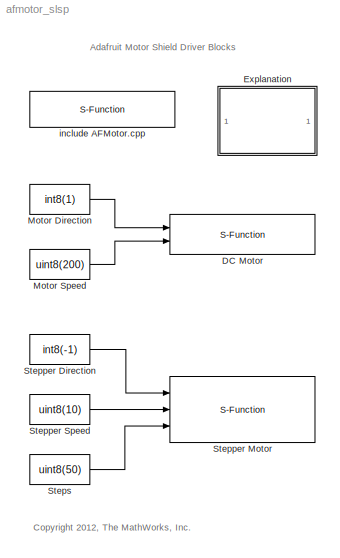
MODEL afmotor_slsp
KIND model
BLOCK [S-Function] DC Motor
  CopyFcn = set_param(gcbh,'LinkStatus','none')
  EnableBusSupport = off
  FunctionName = dcm_slsp
  InitFcn = try, set_param(gcb,'FunctionName','dcm_slsp'), end
  OpenFcn = sfunctionwizard(gcbh)
  Parameters = uint8(4)
  Ports = [2]
  PreSaveFcn = try, set_param(gcb,'FunctionName','dcm_slsp'), end
  SFunctionModules = dcm_slsp_wrapper
  SID = 19
  WizardData = DataTag0
BLOCK [SubSystem] Explanation
  FunctionWithSeparateData = off
  MaskHideContents = off
  MinAlgLoopOccurrences = off
  Opaque = off
  Ports = []
  PropExecContextOutsideSubsystem = off
  RTWSystemCode = Auto
  RequestExecContextInheritance = off
  SID = 28
BLOCK [Constant] Motor Direction
  SID = 20
  Value = int8(1)
BLOCK [Constant] Motor Speed
  SID = 21
  Value = uint8(200)
BLOCK [Constant] Stepper Direction
  SID = 10
  Value = int8(-1)
BLOCK [S-Function] Stepper Motor
  CopyFcn = set_param(gcbh,'LinkStatus','none')
  EnableBusSupport = off
  FunctionName = stm_slsp
  InitFcn = try, set_param(gcb,'FunctionName','stm_slsp'), end
  OpenFcn = sfunctionwizard(gcbh)
  Parameters = uint8(1),uint8(1)
  Ports = [3]
  PreSaveFcn = try, set_param(gcb,'FunctionName','stm_slsp'), end
  SFunctionModules = stm_slsp_wrapper
  SID = 11
  WizardData = DataTag1
BLOCK [Constant] Stepper Speed
  SID = 12
  Value = uint8(10)
BLOCK [Constant] Steps
  SID = 13
  Value = uint8(50)
BLOCK [S-Function] include AFMotor.cpp
  CopyFcn = set_param(gcbh,'LinkStatus','none')
  EnableBusSupport = off
  FunctionName = afm_slsp
  InitFcn = try, set_param(gcb,'FunctionName','afm_slsp'), end
  OpenFcn = sfunctionwizard(gcbh)
  Ports = []
  PreSaveFcn = try, set_param(gcb,'FunctionName','afm_slsp'), end
  SFunctionModules = afm_slsp_wrapper
  SID = 23
  WizardData = DataTag2
ANNOTATION (root): Adafruit Motor Shield Driver Blocks
ANNOTATION (root): <copyright redacted>
ANNOTATION Explanation: GENERAL EXPLANATION:\n--------------------------------------\n\nThis model contains DC and Stepper Motor drivers for use with the (Arduino) \nAdafruit Motor Shield (http://www.adafruit.com/products/81).\n\n\nRUNNING THE MODEL ON THE BOARD:\n----------------------------------------------------------\n\nTo run the model on an arduino board you should:\n\n1) run \"targetinstaller\" from the MATLAB co...<+2938ch>
LINE Motor Direction:1 -> DC Motor:1
LINE Motor Speed:1 -> DC Motor:2
LINE Stepper Direction:1 -> Stepper Motor:1
LINE Stepper Speed:1 -> Stepper Motor:2
LINE Steps:1 -> Stepper Motor:3
